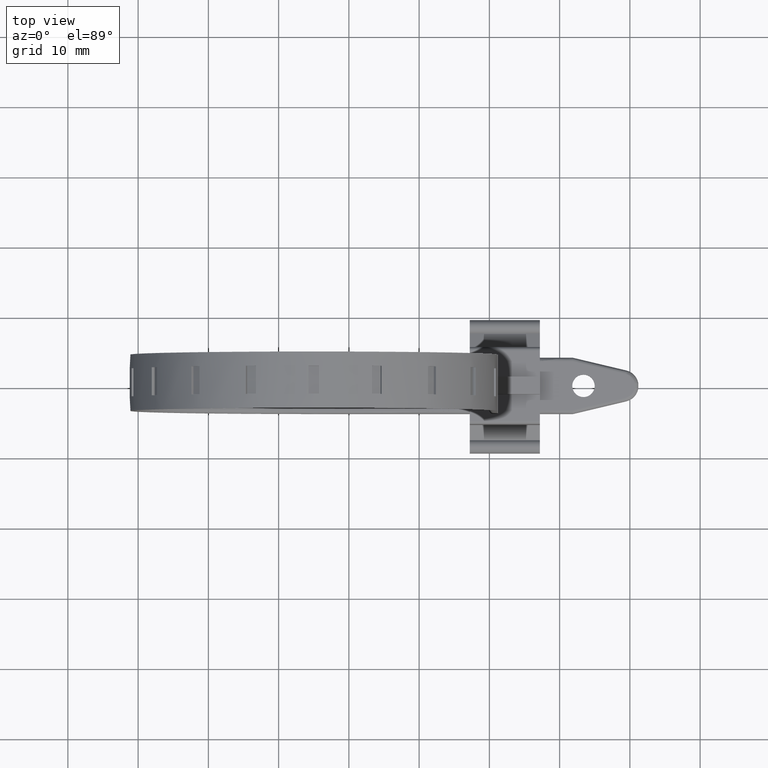
[diagram: clean part render]
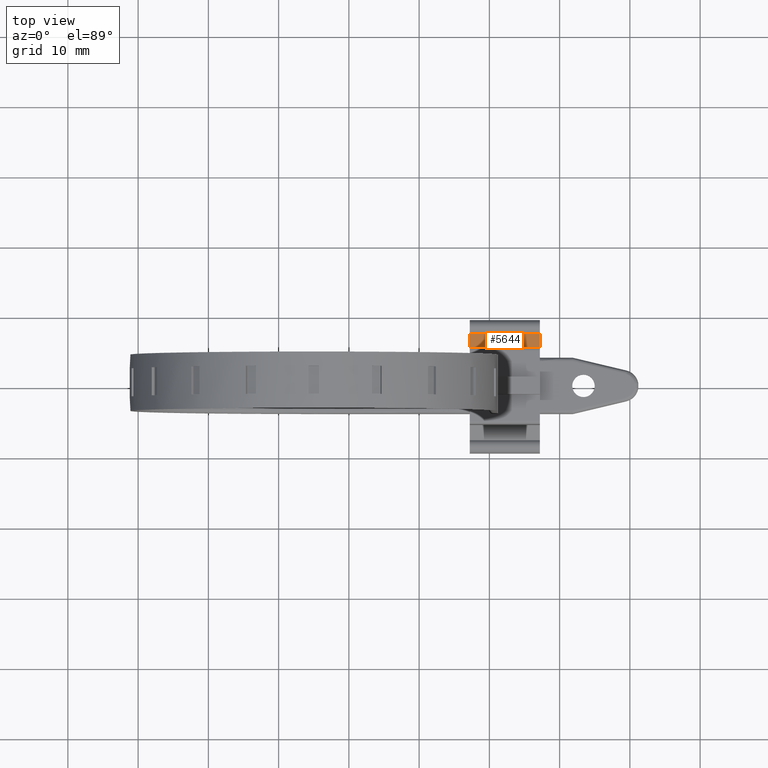
[diagram: same view with one face highlighted and labeled with its STEP entity id]
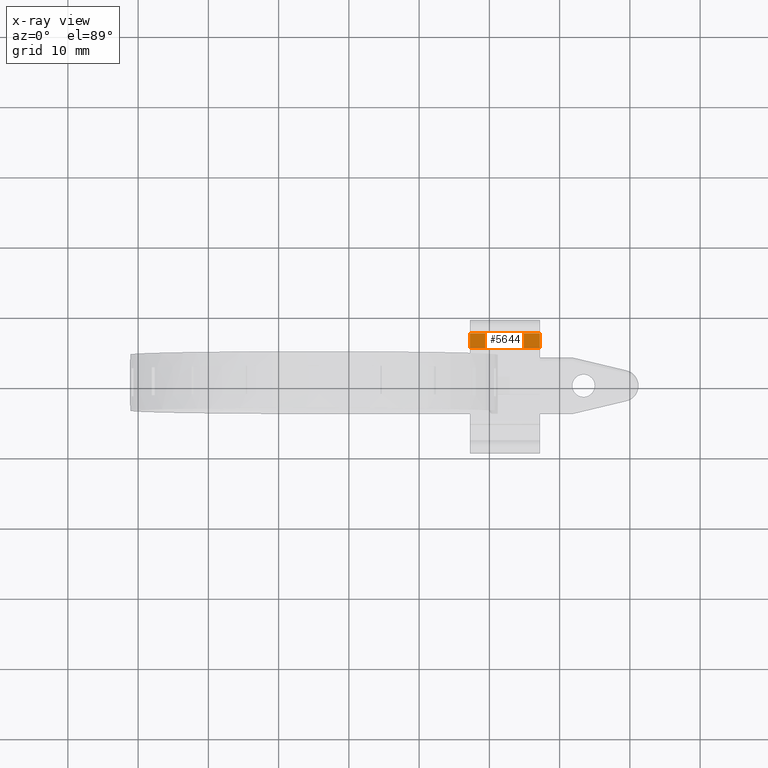
[diagram: x-ray of the same camera — body ghosted, the highlighted face saturated]
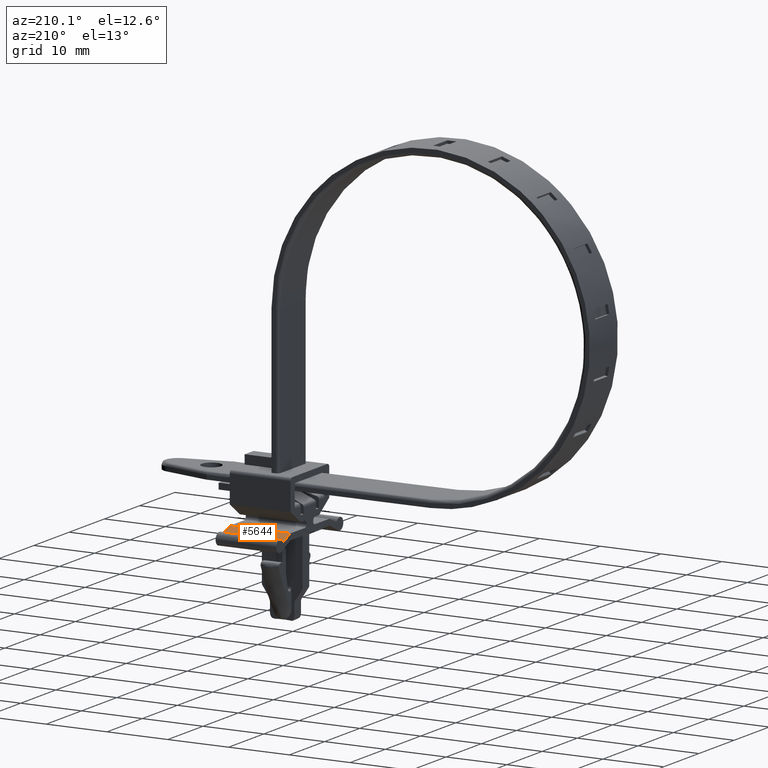
[diagram: same view with one face highlighted and labeled with its STEP entity id]
A machine part, top view. The second image highlights one B-rep face of the part: STEP entity #5644.
The next image is the same camera in x-ray: the body ghosted, the highlighted face saturated — about 0% of this face is hidden behind the body in this view.
A second angle (auxiliary view) of the same face is appended — the face is thin or edge-on in the first view.
In plain terms, the highlighted face is a freeform B-spline surface patch.
Its self-contained STEP definition (entity closure, byte-faithful):
#4878=CARTESIAN_POINT('',(7.200000000000100,5.499952000000000,-17.100010999999899));
#4879=VERTEX_POINT('',#4878);
#4885=CARTESIAN_POINT('',(7.200000000000100,7.600381428980480,-17.963235556830600));
#4886=VERTEX_POINT('',#4885);
#4887=CARTESIAN_POINT('',(7.200000000000100,7.600381428980480,-17.963235556830600));
#4888=CARTESIAN_POINT('',(7.200000000000100,5.499952000000000,-17.100010999999899));
#4889=QUASI_UNIFORM_CURVE('',1,(#4887,#4888),.UNSPECIFIED.,.F.,.U.);
#4890=EDGE_CURVE('',#4886,#4879,#4889,.T.);
#5608=CARTESIAN_POINT('',(17.199999999999999,5.499952000000000,-17.100010999999899));
#5609=VERTEX_POINT('',#5608);
#5615=CARTESIAN_POINT('',(17.199999999999999,5.499952000000000,-17.100010999999899));
#5616=CARTESIAN_POINT('',(7.200000000000100,5.499952000000000,-17.100010999999899));
#5617=QUASI_UNIFORM_CURVE('',1,(#5615,#5616),.UNSPECIFIED.,.F.,.U.);
#5618=EDGE_CURVE('',#5609,#4879,#5617,.T.);
#5623=CARTESIAN_POINT('',(6.700499795909328,5.395035722711202,-17.056892973414559));
#5624=CARTESIAN_POINT('',(6.700499795909328,7.705297695041301,-18.006354198271321));
#5625=CARTESIAN_POINT('',(17.699501008753479,5.395035722711202,-17.056892973414559));
#5626=CARTESIAN_POINT('',(17.699501008753479,7.705297695041302,-18.006354198271321));
#5627=B_SPLINE_SURFACE_WITH_KNOTS('',1,1,((#5623,#5625),(#5624,#5626)),.UNSPECIFIED.,.F.,.F.,.U.,(2,2),(2,2),(0.0,2.497756392905654),(0.0,10.999001212844149),.UNSPECIFIED.);
#5628=ORIENTED_EDGE('',*,*,#4890,.T.);
#5629=ORIENTED_EDGE('',*,*,#5618,.F.);
#5630=CARTESIAN_POINT('',(17.199999999999999,7.600381428980480,-17.963235556830600));
#5631=VERTEX_POINT('',#5630);
#5632=CARTESIAN_POINT('',(17.199999999999999,7.600381428980480,-17.963235556830600));
#5633=CARTESIAN_POINT('',(17.199999999999999,5.499952000000000,-17.100010999999899));
#5634=QUASI_UNIFORM_CURVE('',1,(#5632,#5633),.UNSPECIFIED.,.F.,.U.);
#5635=EDGE_CURVE('',#5631,#5609,#5634,.T.);
#5636=ORIENTED_EDGE('',*,*,#5635,.F.);
#5637=CARTESIAN_POINT('',(17.199999999999999,7.600381428980480,-17.963235556830600));
#5638=CARTESIAN_POINT('',(7.200000000000100,7.600381428980480,-17.963235556830600));
#5639=QUASI_UNIFORM_CURVE('',1,(#5637,#5638),.UNSPECIFIED.,.F.,.U.);
#5640=EDGE_CURVE('',#5631,#4886,#5639,.T.);
#5641=ORIENTED_EDGE('',*,*,#5640,.T.);
#5642=EDGE_LOOP('',(#5628,#5629,#5636,#5641));
#5643=FACE_OUTER_BOUND('',#5642,.T.);
#5644=ADVANCED_FACE('',(#5643),#5627,.F.);